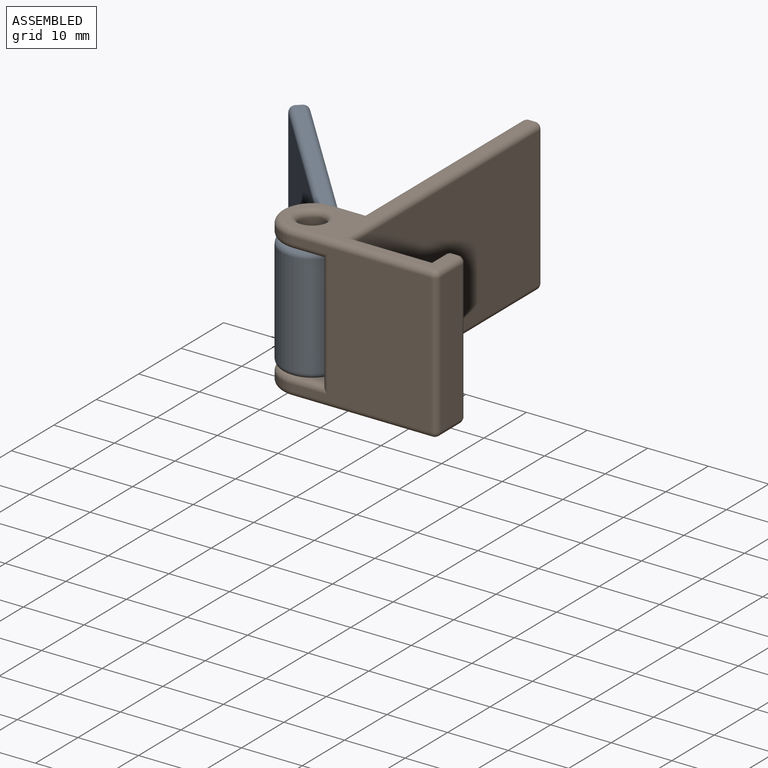
[diagram: assembled view]
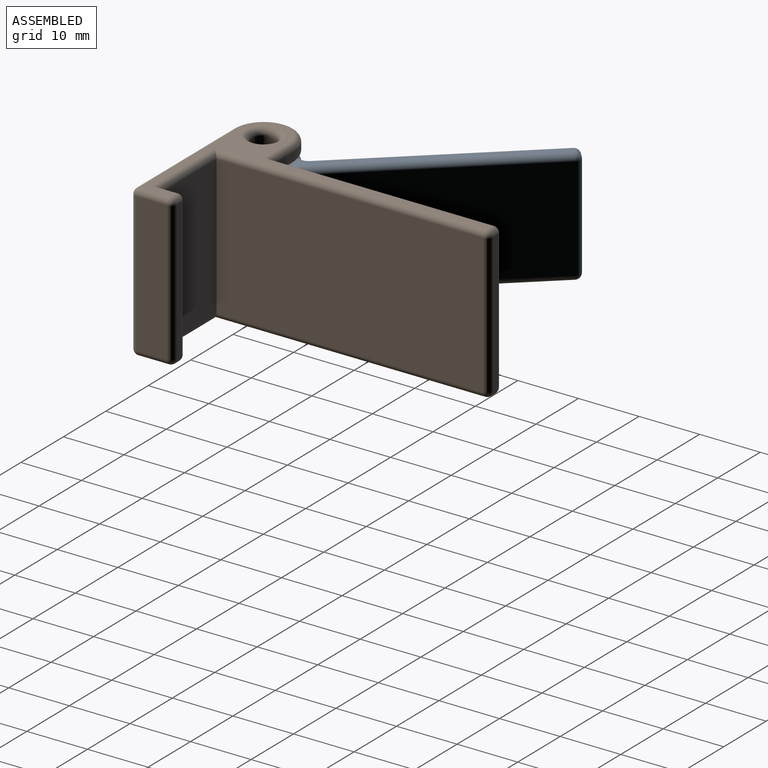
[diagram: assembled view, second angle]
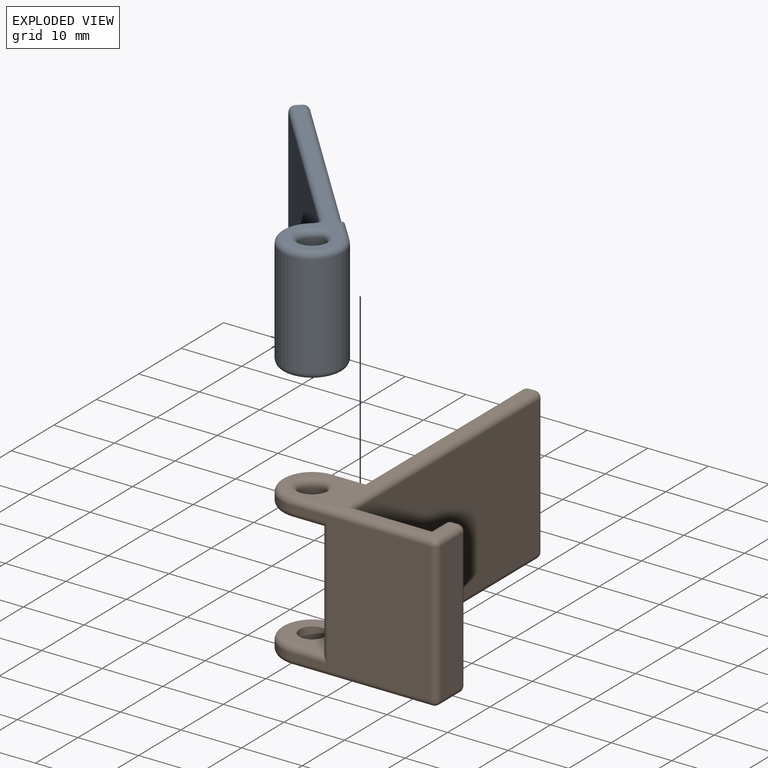
[diagram: exploded view]
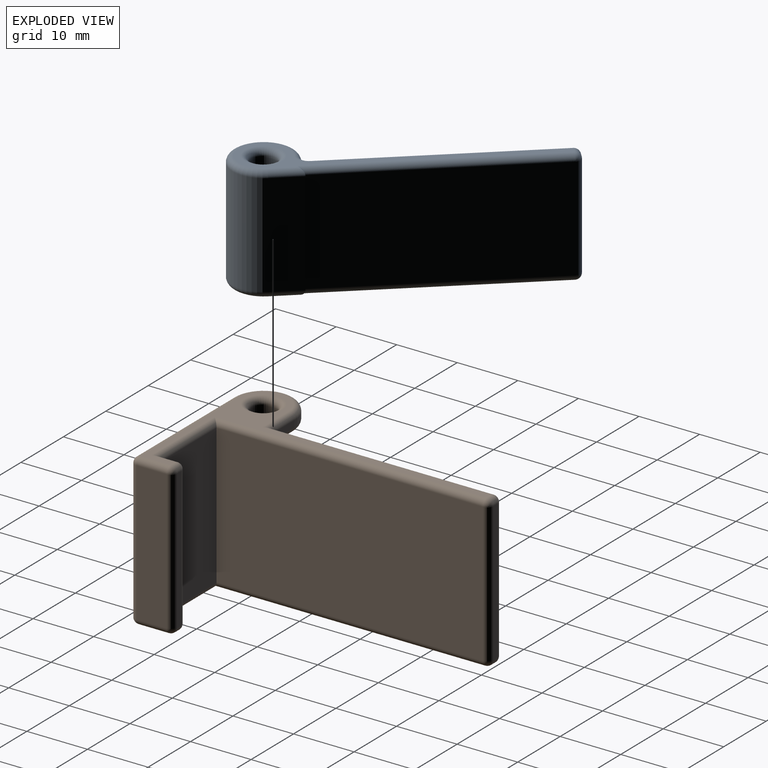
[diagram: exploded view, second angle]
ASSEMBLY  parts=2 mates=2
PART A: 35 faces, bbox 11x48.4x19 mm
  f0: plane 17x0.7mm, normal (0,1,0), area 11.9mm2, adj f2,f26,f29,f32
  f1: plane 17x0.4mm, normal (0,1,0), area 6.8mm2, adj f3,f8,f13,f16
  f2: cylinder r=5.1mm len=17mm, axis (0,0,-1), area 408.6mm2, adj f0,f3,f22,f25
  f3: plane 17x5.1mm, normal (1,0,0), area 86.7mm2, adj f1,f2,f17,f21
  f4: cylinder r=2.1mm len=17mm, axis (0,0,-1), area 224.3mm2, adj f33,f34
  f5: plane 46x8.2mm, normal (0,0,1), area 64.9mm2, adj f12,f16,f20,f21,f25,f28,f29,f31
  f6: plane 46x8.2mm, normal (0,0,-1), area 64.9mm2, adj f10,f13,f17,f18,f22,f26,f27,f30
  f7: plane 35.8x17mm, normal (-1,0,0), area 608.6mm2, adj f19,f27,f28,f32
  f8: plane 36.8x17mm, normal (1,0,0), area 625.6mm2, adj f1,f10,f11,f12
  f9: plane 17x1mm, normal (0,1,0), area 17mm2, adj f11,f18,f19,f20
  f10: cylinder r=1mm len=37.8mm, axis (0,1,0), area 58.4mm2, adj f6,f8,f13,f14
  f11: cylinder r=1mm len=17mm, axis (0,0,-1), area 26.7mm2, adj f8,f9,f14,f15
  f12: cylinder r=1mm len=37.8mm, axis (0,-1,0), area 58.4mm2, adj f5,f8,f15,f16
  f13: cylinder r=1mm len=1.4mm, axis (-1,0,0), area 0.6mm2, adj f1,f6,f10,f17
  f14: sphere r=1mm, area 1.6mm2, adj f10,f11,f18
  f15: sphere r=1mm, area 1.6mm2, adj f11,f12,f20
  f16: cylinder r=1mm len=1.4mm, axis (1,0,0), area 0.6mm2, adj f1,f5,f12,f21
  f17: cylinder r=1mm len=5.1mm, axis (0,1,0), area 7.4mm2, adj f3,f6,f13,f22
  f18: cylinder r=1mm len=1mm, axis (-1,0,0), area 1.6mm2, adj f6,f9,f14,f23
  f19: cylinder r=1mm len=17mm, axis (0,0,-1), area 26.7mm2, adj f7,f9,f23,f24
  f20: cylinder r=1mm len=1mm, axis (1,0,0), area 1.6mm2, adj f5,f9,f15,f24
  f21: cylinder r=1mm len=5.1mm, axis (0,-1,0), area 7.4mm2, adj f3,f5,f16,f25
  f22: torus R=4.1mm, axis (0,0,1), area 35.1mm2, adj f2,f6,f17,f26
  f23: sphere r=1mm, area 1.6mm2, adj f18,f19,f27
  f24: sphere r=1mm, area 1.6mm2, adj f19,f20,f28
  f25: torus R=4.1mm, axis (0,0,1), area 35.1mm2, adj f2,f5,f21,f29
  f26: cylinder r=1mm len=1mm, axis (-1,0,0), area 1.1mm2, adj f0,f6,f22,f30
  f27: cylinder r=1mm len=35.8mm, axis (0,-1,0), area 56.2mm2, adj f6,f7,f23,f30
  f28: cylinder r=1mm len=35.8mm, axis (0,1,0), area 56.2mm2, adj f5,f7,f24,f31
  f29: cylinder r=1mm len=1mm, axis (1,0,0), area 1.1mm2, adj f0,f5,f25,f31
  f30: torus R=2mm, axis (0,0,1), area 3.4mm2, adj f6,f26,f27,f32
  f31: torus R=2mm, axis (0,0,1), area 3.4mm2, adj f5,f28,f29,f32
  f32: cylinder r=1mm len=17mm, axis (0,0,-1), area 26.7mm2, adj f0,f7,f30,f31
  f33: torus R=3.1mm, axis (0,0,1), area 24.3mm2, adj f4,f6
  f34: torus R=3.1mm, axis (0,0,1), area 24.3mm2, adj f4,f5
PART B: 62 faces, bbox 29.6x48.4x25 mm
  f0: plane 5.1x1mm, normal (0,1,0), area 5.1mm2, adj f1,f3,f18,f48
  f1: cylinder r=5.1mm len=10.2mm, axis (0,0,-1), area 16mm2, adj f0,f6,f19,f52
  f2: cylinder r=2.1mm len=4.2mm, axis (0,0,-1), area 26.4mm2, adj f16,f60
  f3: plane 46x23mm, normal (-1,0,0), area 1021.6mm2, adj f0,f4,f16,f17,f18,f21,f24,f34
  f4: plane 5.1x1mm, normal (0,1,0), area 5.1mm2, adj f3,f5,f24,f44
  f5: cylinder r=5.1mm len=10.2mm, axis (0,0,-1), area 16mm2, adj f4,f6,f23,f49
  f6: plane 23.1x23mm, normal (0,-1,0), area 403.2mm2, adj f1,f5,f20,f21,f22,f53,f56,f59
  f7: plane 23x5mm, normal (1,0,0), area 115mm2, adj f46,f54,f55,f59
  f8: plane 23x1mm, normal (0,1,0), area 23mm2, adj f37,f45,f46,f47
  f9: plane 23x3mm, normal (-1,0,0), area 69mm2, adj f10,f36,f37,f38
  f10: plane 23x13mm, normal (0,1,0), area 299mm2, adj f9,f11,f31,f32
  f11: plane 44x23mm, normal (1,0,0), area 1012mm2, adj f10,f25,f27,f28
  f12: plane 23x1mm, normal (0,1,0), area 23mm2, adj f25,f30,f33,f34
  f13: cylinder r=2.1mm len=4.2mm, axis (0,0,-1), area 26.4mm2, adj f17,f61
  f14: plane 46x27.2mm, normal (0,0,1), area 112.2mm2, adj f27,f30,f31,f36,f40,f44,f45,f49
  f15: plane 46x27.2mm, normal (0,0,-1), area 112.2mm2, adj f28,f32,f33,f38,f43,f47,f48,f52
  f16: plane 9.2x8.2mm, normal (0,0,1), area 54.4mm2, adj f2,f3,f18,f19,f20
  f17: plane 9.2x8.2mm, normal (0,0,-1), area 54.4mm2, adj f3,f13,f22,f23,f24
  f18: cylinder r=1mm len=5.1mm, axis (1,0,0), area 8mm2, adj f0,f3,f16,f19
  f19: torus R=4.1mm, axis (0,0,1), area 23.4mm2, adj f1,f16,f18,f20
  f20: cylinder r=1mm len=6.1mm, axis (-1,0,0), area 8.6mm2, adj f6,f16,f19,f21
  f21: cylinder r=1mm len=21mm, axis (0,0,1), area 31mm2, adj f3,f6,f20,f22
  f22: cylinder r=1mm len=6.1mm, axis (1,0,0), area 8.6mm2, adj f6,f17,f21,f23
  f23: torus R=4.1mm, axis (0,0,1), area 23.4mm2, adj f5,f17,f22,f24
  f24: cylinder r=1mm len=5.1mm, axis (-1,0,0), area 8mm2, adj f3,f4,f17,f23
  f25: cylinder r=1mm len=23mm, axis (0,0,-1), area 36.1mm2, adj f11,f12,f26,f29
  f26: sphere r=1mm, area 1.6mm2, adj f25,f27,f30
  f27: cylinder r=1mm len=45mm, axis (0,-1,0), area 69.7mm2, adj f11,f14,f26,f31
  f28: cylinder r=1mm len=45mm, axis (0,1,0), area 69.7mm2, adj f11,f15,f29,f32
  f29: sphere r=1mm, area 1.6mm2, adj f25,f28,f33
  f30: cylinder r=1mm len=1mm, axis (1,0,0), area 1.6mm2, adj f12,f14,f26,f35
  f31: cylinder r=1mm len=15mm, axis (1,0,0), area 21.6mm2, adj f10,f14,f27,f36
  f32: cylinder r=1mm len=15mm, axis (-1,0,0), area 21.6mm2, adj f10,f15,f28,f38
  f33: cylinder r=1mm len=1mm, axis (-1,0,0), area 1.6mm2, adj f12,f15,f29,f39
  f34: cylinder r=1mm len=23mm, axis (0,0,-1), area 36.1mm2, adj f3,f12,f35,f39
  f35: sphere r=1mm, area 1.6mm2, adj f30,f34,f40
  f36: cylinder r=1mm len=4mm, axis (0,1,0), area 5.3mm2, adj f9,f14,f31,f41
  f37: cylinder r=1mm len=23mm, axis (0,0,-1), area 36.1mm2, adj f8,f9,f41,f42
  f38: cylinder r=1mm len=4mm, axis (0,-1,0), area 5.3mm2, adj f9,f15,f32,f42
  f39: sphere r=1mm, area 1.6mm2, adj f33,f34,f43
  f40: cylinder r=1mm len=37.8mm, axis (0,1,0), area 58.4mm2, adj f3,f14,f35,f44
  f41: sphere r=1mm, area 1.6mm2, adj f36,f37,f45
  f42: sphere r=1mm, area 1.6mm2, adj f37,f38,f47
  f43: cylinder r=1mm len=37.8mm, axis (0,-1,0), area 58.4mm2, adj f3,f15,f39,f48
  f44: cylinder r=1mm len=6.1mm, axis (1,0,0), area 8.6mm2, adj f4,f14,f40,f49
  f45: cylinder r=1mm len=1mm, axis (1,0,0), area 1.6mm2, adj f8,f14,f41,f50
  f46: cylinder r=1mm len=23mm, axis (0,0,-1), area 36.1mm2, adj f7,f8,f50,f51
  f47: cylinder r=1mm len=1mm, axis (-1,0,0), area 1.6mm2, adj f8,f15,f42,f51
  f48: cylinder r=1mm len=6.1mm, axis (-1,0,0), area 8.6mm2, adj f0,f15,f43,f52
  f49: torus R=4.1mm, axis (0,0,1), area 23.4mm2, adj f5,f14,f44,f53
  f50: sphere r=1mm, area 1.6mm2, adj f45,f46,f54
  f51: sphere r=1mm, area 1.6mm2, adj f46,f47,f55
  f52: torus R=4.1mm, axis (0,0,1), area 23.4mm2, adj f1,f15,f48,f56
  f53: cylinder r=1mm len=23.1mm, axis (-1,0,0), area 36.3mm2, adj f6,f14,f49,f57
  f54: cylinder r=1mm len=5mm, axis (0,-1,0), area 7.9mm2, adj f7,f14,f50,f57
  f55: cylinder r=1mm len=5mm, axis (0,1,0), area 7.9mm2, adj f7,f15,f51,f58
  f56: cylinder r=1mm len=23.1mm, axis (1,0,0), area 36.3mm2, adj f6,f15,f52,f58
  f57: sphere r=1mm, area 1.6mm2, adj f53,f54,f59
  f58: sphere r=1mm, area 1.6mm2, adj f55,f56,f59
  f59: cylinder r=1mm len=23mm, axis (0,0,-1), area 36.1mm2, adj f6,f7,f57,f58
  f60: torus R=3.1mm, axis (0,0,1), area 24.3mm2, adj f2,f15
  f61: torus R=3.1mm, axis (0,0,1), area 24.3mm2, adj f13,f14
PLACE A rot(axis=(0,0,1),41.7deg) t=(-30.97,-22.07,-4.89)mm
PLACE B t=(-33.07,-26.76,-4.89)mm fixed
MATE cylindrical A.f2 <-> B.f1  axis (0,0,-1) through (-38.17,-21.66,-4.89)mm
MATE planar A.f5 <-> B.f17  axis (0,0,1) through (-40.38,-18.14,4.61)mm
